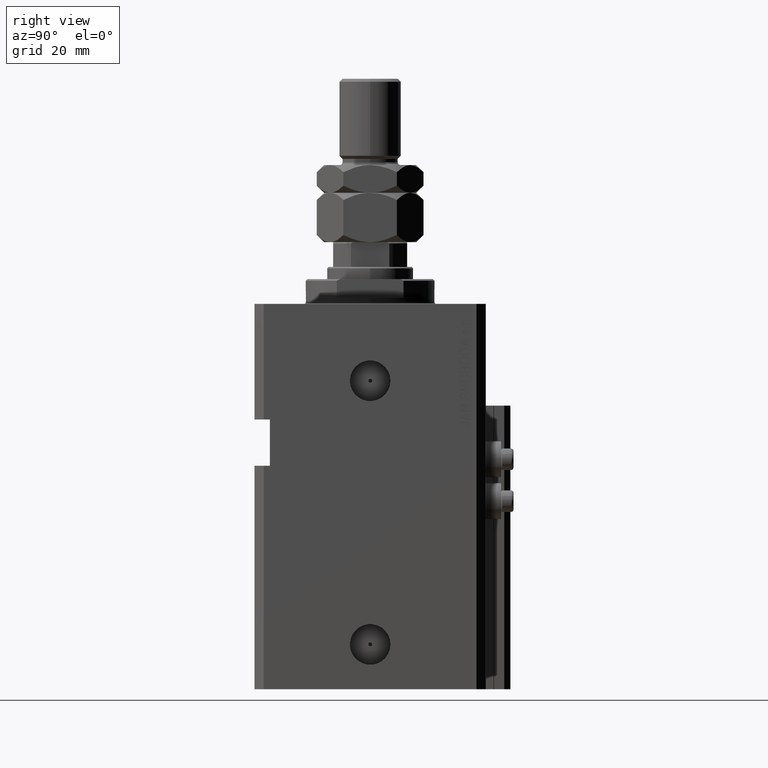
[diagram: clean part render]
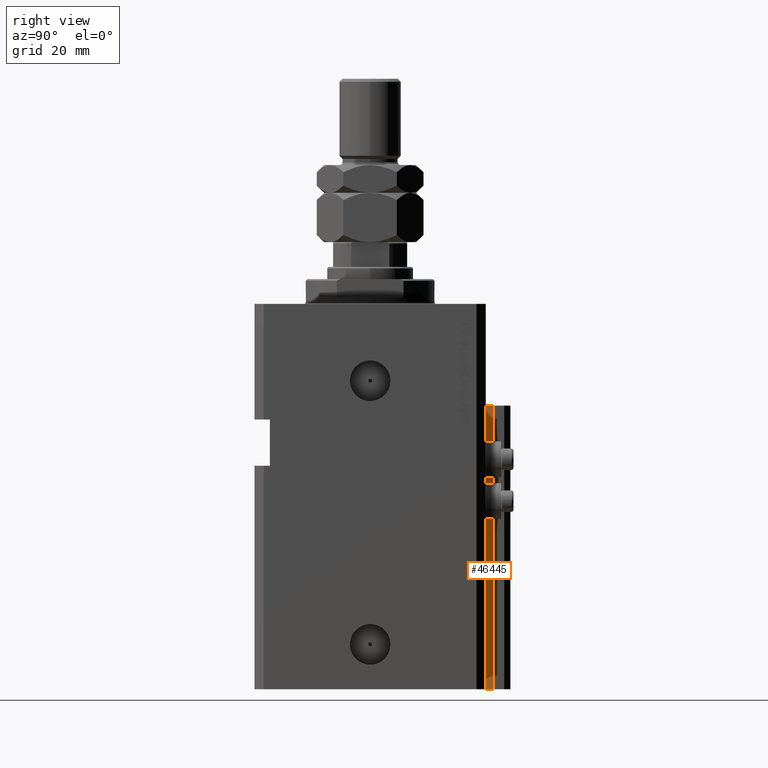
[diagram: same view with one face highlighted and labeled with its STEP entity id]
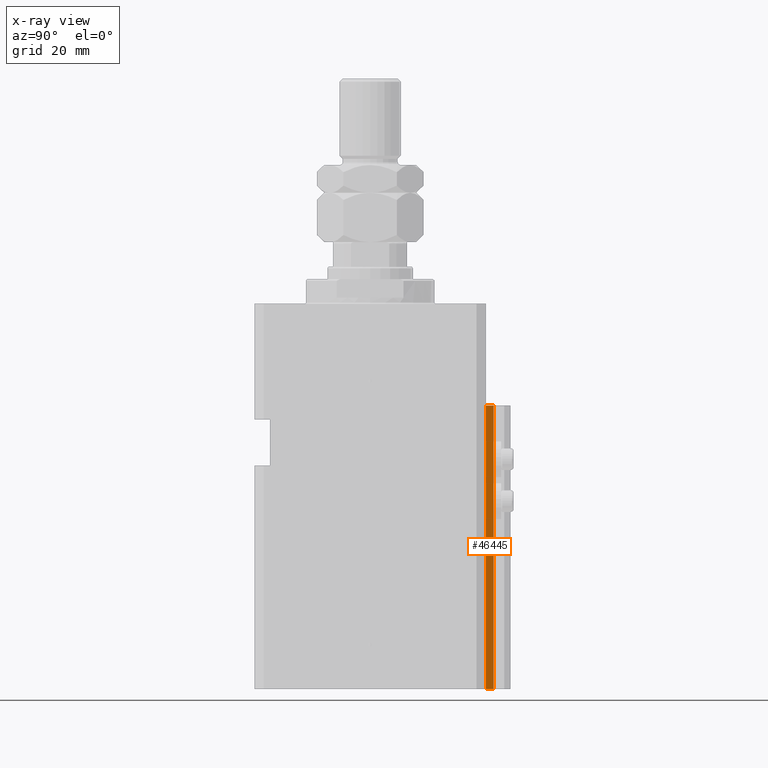
[diagram: x-ray of the same camera — body ghosted, the highlighted face saturated]
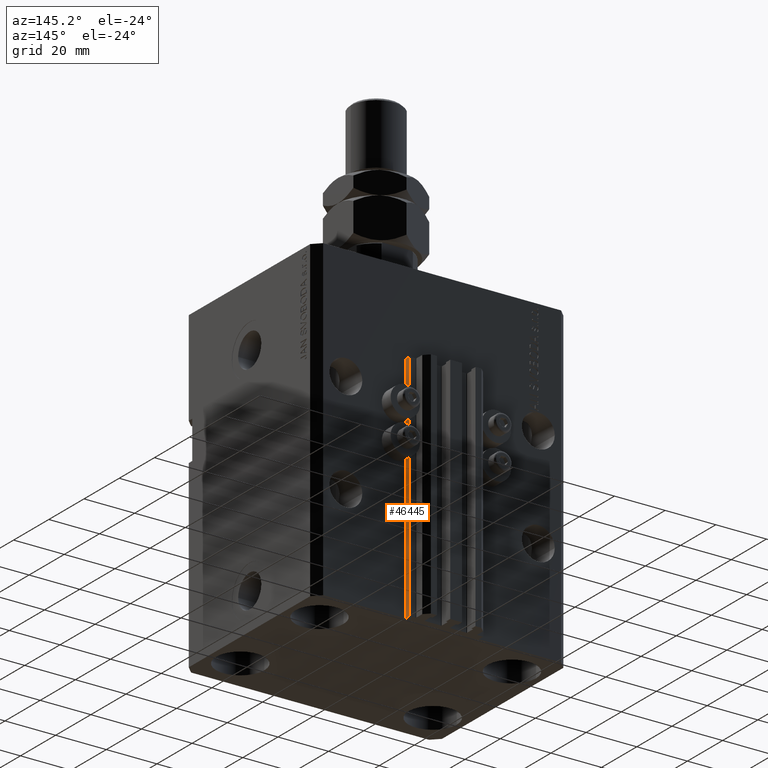
[diagram: same view with one face highlighted and labeled with its STEP entity id]
A machine part, right view. The second image highlights one B-rep face of the part: STEP entity #46445.
The next image is the same camera in x-ray: the body ghosted, the highlighted face saturated — about 0% of this face is hidden behind the body in this view.
A second angle (auxiliary view) of the same face is appended — the face is thin or edge-on in the first view.
In plain terms, the highlighted planar face has unit normal (1, 0, 0).
Its self-contained STEP definition (entity closure, byte-faithful):
#709 = DIRECTION ( 'NONE',  ( 0.000000000000000000, 1.000000000000000000, 0.000000000000000000 ) ) ;
#1171 = CARTESIAN_POINT ( 'NONE',  ( 14.49999999999999645, 37.50000000000000711, -33.00000000000000000 ) ) ;
#1406 = CARTESIAN_POINT ( 'NONE',  ( 14.49999999999999645, 37.50000000000000711, -125.0000000000000000 ) ) ;
#1802 = EDGE_CURVE ( 'NONE', #25279, #47228, #20519, .T. ) ;
#6031 = VECTOR ( 'NONE', #20753, 1000.000000000000000 ) ;
#6178 = CARTESIAN_POINT ( 'NONE',  ( 14.49999999999999645, 40.00000000000002132, -125.0000000000000000 ) ) ;
#8363 = CARTESIAN_POINT ( 'NONE',  ( 14.49999999999999645, 37.50000000000000711, -33.00000000000000000 ) ) ;
#10780 = EDGE_CURVE ( 'NONE', #38197, #49854, #27929, .T. ) ;
#13664 = EDGE_CURVE ( 'NONE', #49854, #47228, #48913, .T. ) ;
#14418 = AXIS2_PLACEMENT_3D ( 'NONE', #22942, #33890, #14820 ) ;
#14820 = DIRECTION ( 'NONE',  ( 0.000000000000000000, 0.000000000000000000, -1.000000000000000000 ) ) ;
#15403 = VECTOR ( 'NONE', #17116, 1000.000000000000000 ) ;
#17116 = DIRECTION ( 'NONE',  ( 0.000000000000000000, 0.000000000000000000, 1.000000000000000000 ) ) ;
#19162 = ORIENTED_EDGE ( 'NONE', *, *, #13664, .T. ) ;
#20519 = LINE ( 'NONE', #1171, #44303 ) ;
#20753 = DIRECTION ( 'NONE',  ( 0.000000000000000000, 0.000000000000000000, 1.000000000000000000 ) ) ;
#21513 = LINE ( 'NONE', #1406, #6031 ) ;
#21990 = ORIENTED_EDGE ( 'NONE', *, *, #1802, .F. ) ;
#22780 = CARTESIAN_POINT ( 'NONE',  ( 14.49999999999999645, 40.00000000000002132, -33.00000000000000000 ) ) ;
#22942 = CARTESIAN_POINT ( 'NONE',  ( 14.49999999999999645, 37.50000000000000711, -125.0000000000000000 ) ) ;
#24623 = EDGE_LOOP ( 'NONE', ( #21990, #40781, #40983, #19162 ) ) ;
#25279 = VERTEX_POINT ( 'NONE', #8363 ) ;
#27929 = LINE ( 'NONE', #46780, #49390 ) ;
#28645 = DIRECTION ( 'NONE',  ( 0.000000000000000000, 1.000000000000000000, 0.000000000000000000 ) ) ;
#32713 = CARTESIAN_POINT ( 'NONE',  ( 14.49999999999999645, 40.00000000000002132, -125.0000000000000000 ) ) ;
#33890 = DIRECTION ( 'NONE',  ( 1.000000000000000000, 0.000000000000000000, 0.000000000000000000 ) ) ;
#34901 = EDGE_CURVE ( 'NONE', #38197, #25279, #21513, .T. ) ;
#37469 = FACE_OUTER_BOUND ( 'NONE', #24623, .T. ) ;
#38197 = VERTEX_POINT ( 'NONE', #49845 ) ;
#40781 = ORIENTED_EDGE ( 'NONE', *, *, #34901, .F. ) ;
#40983 = ORIENTED_EDGE ( 'NONE', *, *, #10780, .T. ) ;
#41781 = PLANE ( 'NONE',  #14418 ) ;
#44303 = VECTOR ( 'NONE', #28645, 1000.000000000000000 ) ;
#46445 = ADVANCED_FACE ( 'NONE', ( #37469 ), #41781, .T. ) ;
#46780 = CARTESIAN_POINT ( 'NONE',  ( 14.49999999999999645, 37.50000000000000711, -125.0000000000000000 ) ) ;
#47228 = VERTEX_POINT ( 'NONE', #22780 ) ;
#48913 = LINE ( 'NONE', #6178, #15403 ) ;
#49390 = VECTOR ( 'NONE', #709, 1000.000000000000000 ) ;
#49845 = CARTESIAN_POINT ( 'NONE',  ( 14.49999999999999645, 37.50000000000000711, -125.0000000000000000 ) ) ;
#49854 = VERTEX_POINT ( 'NONE', #32713 ) ;